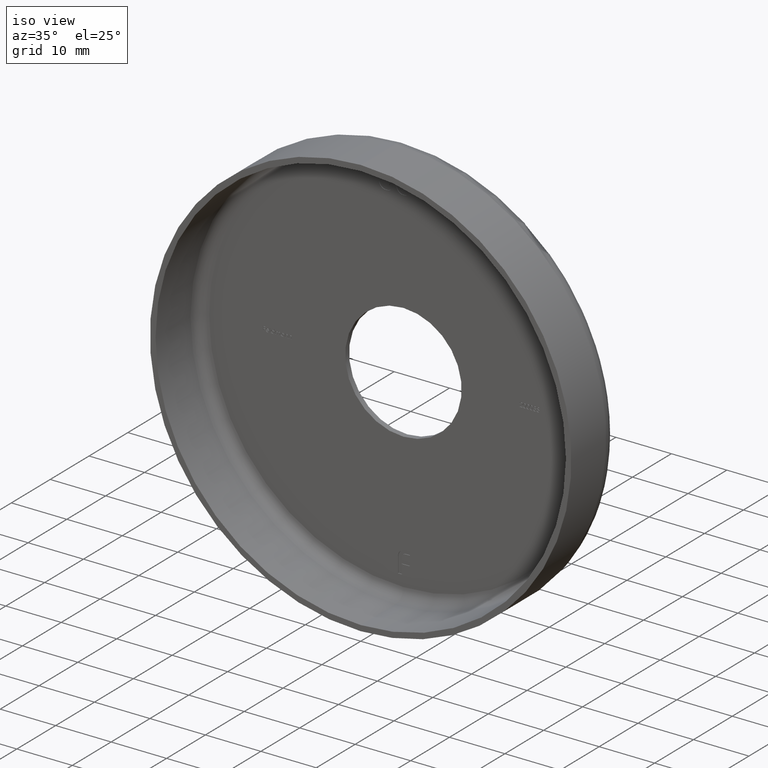
[diagram: clean part render]
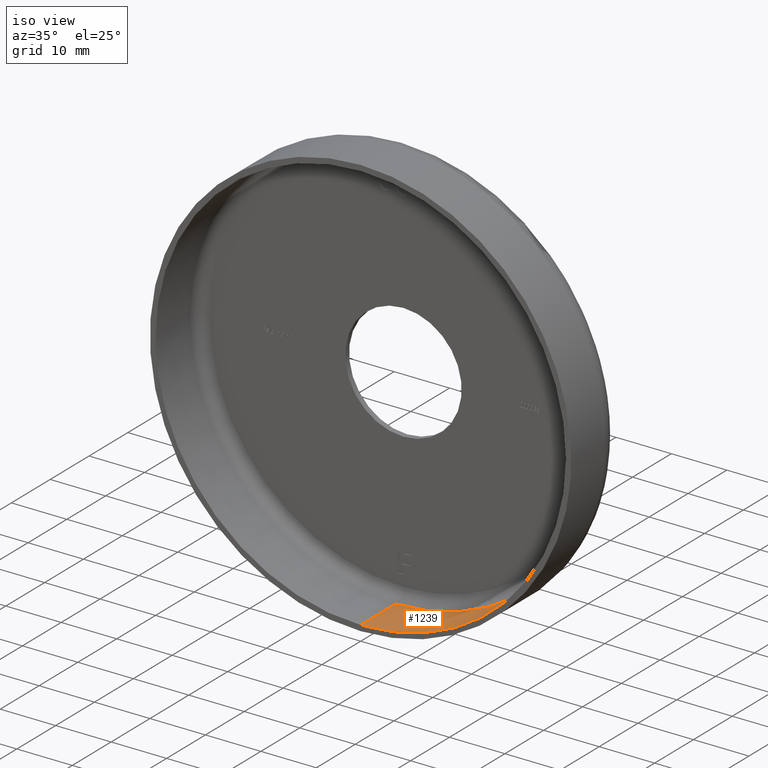
[diagram: same view with one face highlighted and labeled with its STEP entity id]
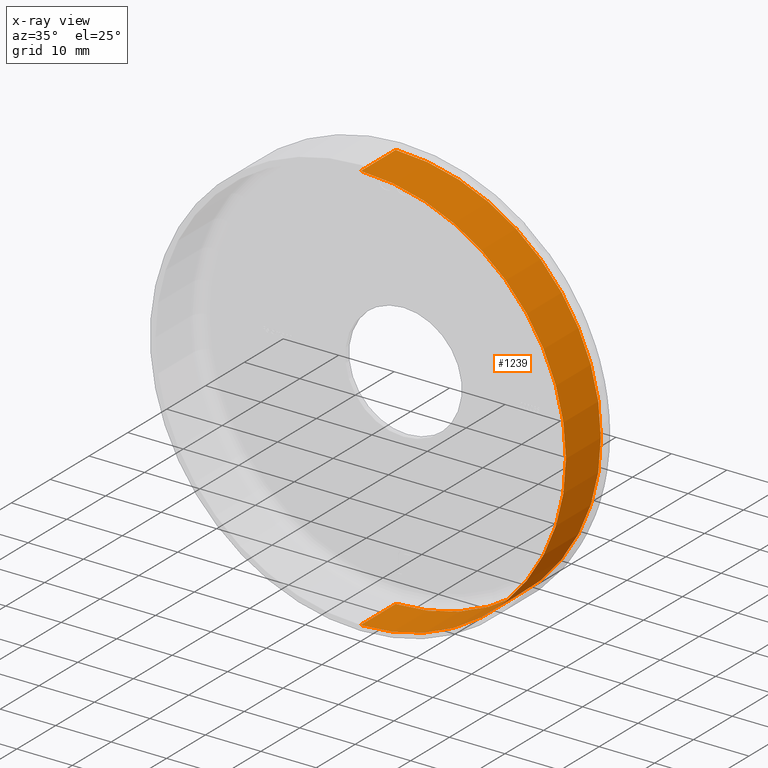
[diagram: x-ray of the same camera — body ghosted, the highlighted face saturated]
A machine part, iso view. The second image highlights one B-rep face of the part: STEP entity #1239.
The next image is the same camera in x-ray: the body ghosted, the highlighted face saturated — about 0% of this face is hidden behind the body in this view.
In plain terms, the highlighted cylindrical surface (partial cylindrical patch) has radius 37 mm, axis along (-0, -1, -0).
Its self-contained STEP definition (entity closure, byte-faithful):
#83 = LINE ( 'NONE', #14768, #3002 ) ;
#606 = AXIS2_PLACEMENT_3D ( 'NONE', #11123, #14981, #12420 ) ;
#1239 = ADVANCED_FACE ( 'NONE', ( #9120 ), #9313, .F. ) ;
#3002 = VECTOR ( 'NONE', #16034, 1000.000000000000000 ) ;
#3131 = CARTESIAN_POINT ( 'NONE',  ( 4.531193156845207581E-15, 9.000000000000001776, 37.00000000000000711 ) ) ;
#3133 = DIRECTION ( 'NONE',  ( 0.000000000000000000, 0.000000000000000000, -1.000000000000000000 ) ) ;
#3676 = VERTEX_POINT ( 'NONE', #3131 ) ;
#3876 = ORIENTED_EDGE ( 'NONE', *, *, #12752, .F. ) ;
#4027 = LINE ( 'NONE', #4903, #9708 ) ;
#4513 = CARTESIAN_POINT ( 'NONE',  ( 0.000000000000000000, -1.224646799147353207E-16, -37.00000000000000711 ) ) ;
#4628 = ORIENTED_EDGE ( 'NONE', *, *, #8053, .T. ) ;
#4903 = CARTESIAN_POINT ( 'NONE',  ( 0.000000000000000000, 0.000000000000000000, -37.00000000000000711 ) ) ;
#6268 = AXIS2_PLACEMENT_3D ( 'NONE', #10181, #11433, #6471 ) ;
#6471 = DIRECTION ( 'NONE',  ( 0.000000000000000000, 0.000000000000000000, -1.000000000000000000 ) ) ;
#6881 = DIRECTION ( 'NONE',  ( -0.000000000000000000, -1.000000000000000000, -0.000000000000000000 ) ) ;
#6935 = CIRCLE ( 'NONE', #6268, 37.00000000000000711 ) ;
#7370 = DIRECTION ( 'NONE',  ( -0.000000000000000000, -1.000000000000000000, -0.000000000000000000 ) ) ;
#8053 = EDGE_CURVE ( 'NONE', #10741, #10043, #4027, .T. ) ;
#9120 = FACE_OUTER_BOUND ( 'NONE', #9961, .T. ) ;
#9313 = CYLINDRICAL_SURFACE ( 'NONE', #606, 37.00000000000000711 ) ;
#9520 = CARTESIAN_POINT ( 'NONE',  ( 0.000000000000000000, 9.000000000000001776, 0.000000000000000000 ) ) ;
#9708 = VECTOR ( 'NONE', #7370, 1000.000000000000000 ) ;
#9961 = EDGE_LOOP ( 'NONE', ( #10237, #3876, #4628, #13992 ) ) ;
#10043 = VERTEX_POINT ( 'NONE', #4513 ) ;
#10093 = EDGE_CURVE ( 'NONE', #10043, #11769, #6935, .T. ) ;
#10181 = CARTESIAN_POINT ( 'NONE',  ( 0.000000000000000000, -1.224646799147353207E-16, 0.000000000000000000 ) ) ;
#10237 = ORIENTED_EDGE ( 'NONE', *, *, #14978, .F. ) ;
#10741 = VERTEX_POINT ( 'NONE', #13579 ) ;
#11123 = CARTESIAN_POINT ( 'NONE',  ( 0.000000000000000000, 0.000000000000000000, 0.000000000000000000 ) ) ;
#11433 = DIRECTION ( 'NONE',  ( -0.000000000000000000, -1.000000000000000000, -0.000000000000000000 ) ) ;
#11769 = VERTEX_POINT ( 'NONE', #12155 ) ;
#12155 = CARTESIAN_POINT ( 'NONE',  ( 4.531193156845207581E-15, -1.224646799147353207E-16, 37.00000000000000711 ) ) ;
#12420 = DIRECTION ( 'NONE',  ( 0.000000000000000000, 0.000000000000000000, -1.000000000000000000 ) ) ;
#12752 = EDGE_CURVE ( 'NONE', #10741, #3676, #13546, .T. ) ;
#13473 = AXIS2_PLACEMENT_3D ( 'NONE', #9520, #6881, #3133 ) ;
#13546 = CIRCLE ( 'NONE', #13473, 37.00000000000000711 ) ;
#13579 = CARTESIAN_POINT ( 'NONE',  ( 0.000000000000000000, 9.000000000000001776, -37.00000000000000711 ) ) ;
#13992 = ORIENTED_EDGE ( 'NONE', *, *, #10093, .T. ) ;
#14768 = CARTESIAN_POINT ( 'NONE',  ( 4.531193156845207581E-15, 0.000000000000000000, 37.00000000000000711 ) ) ;
#14978 = EDGE_CURVE ( 'NONE', #3676, #11769, #83, .T. ) ;
#14981 = DIRECTION ( 'NONE',  ( -0.000000000000000000, -1.000000000000000000, -0.000000000000000000 ) ) ;
#16034 = DIRECTION ( 'NONE',  ( -0.000000000000000000, -1.000000000000000000, -0.000000000000000000 ) ) ;